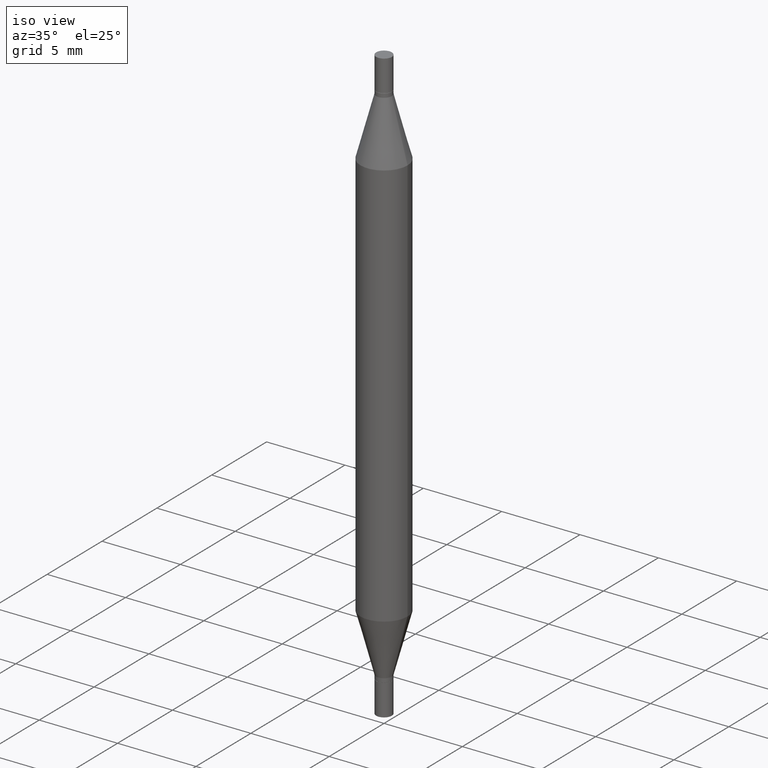
[diagram: clean part render]
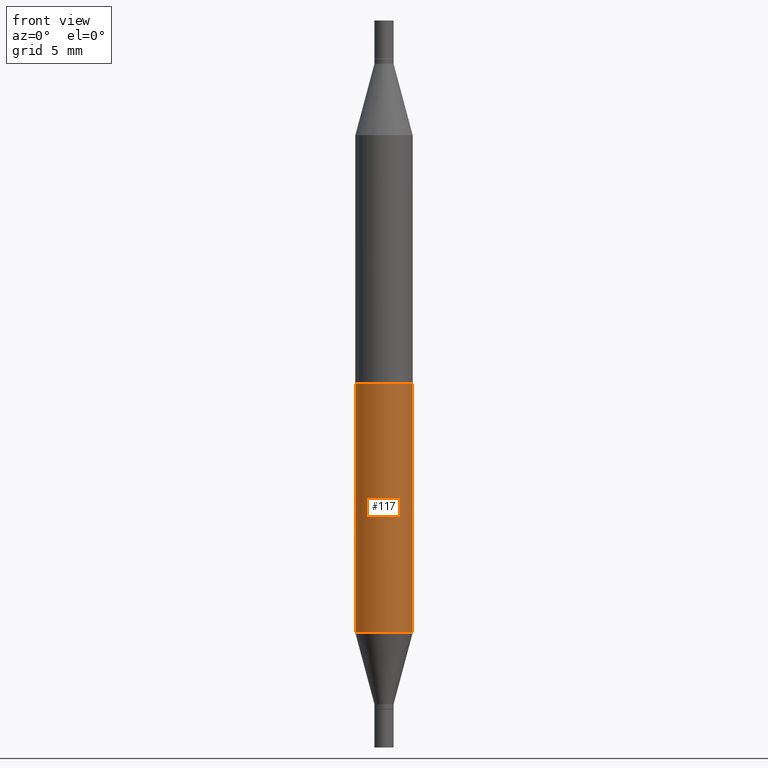
[diagram: tour spotlight — one face highlighted and labeled with its STEP entity id]
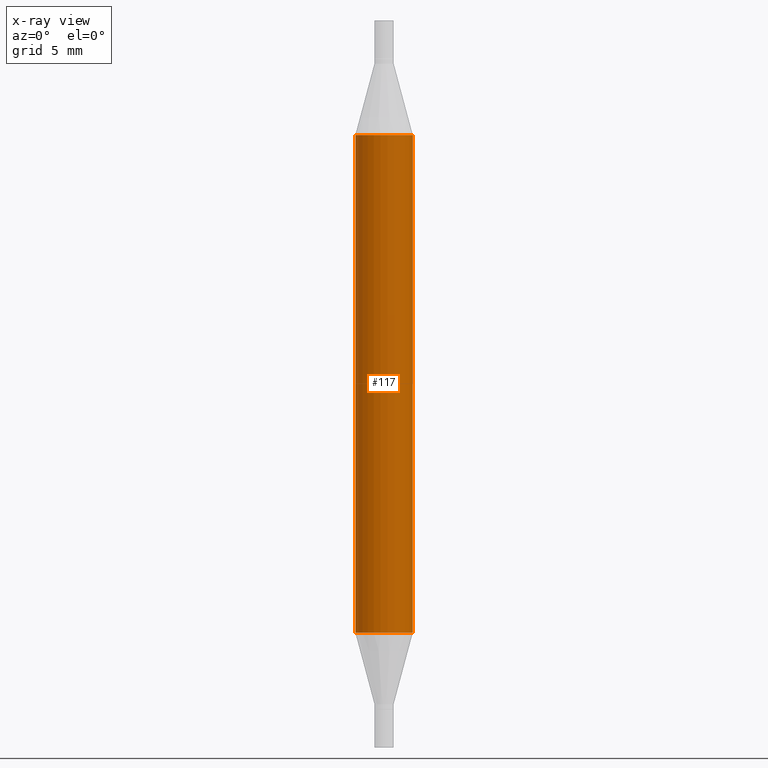
[diagram: x-ray of the same camera — body ghosted, this tour face saturated]
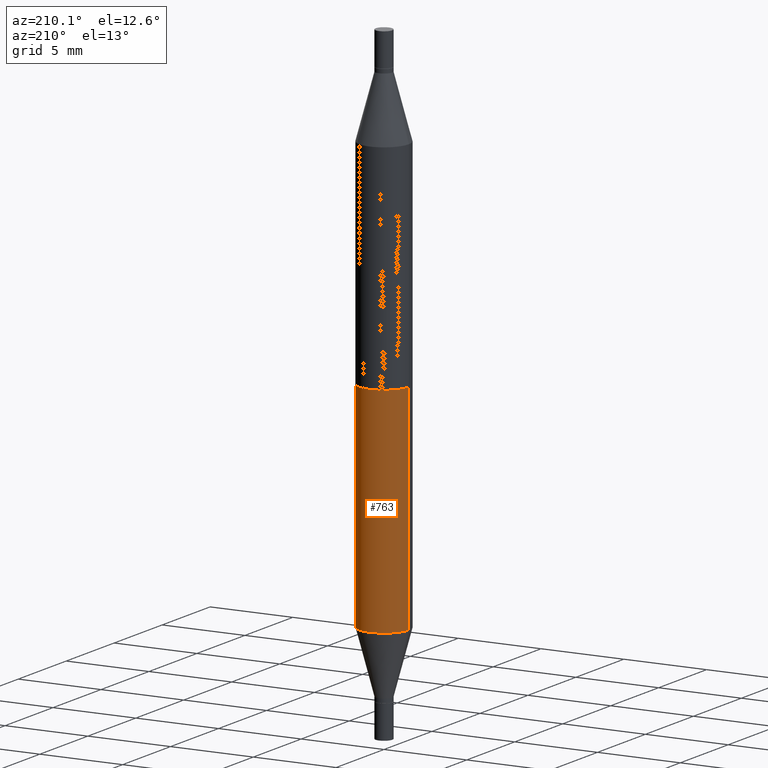
[diagram: tour spotlight — one face highlighted and labeled with its STEP entity id]
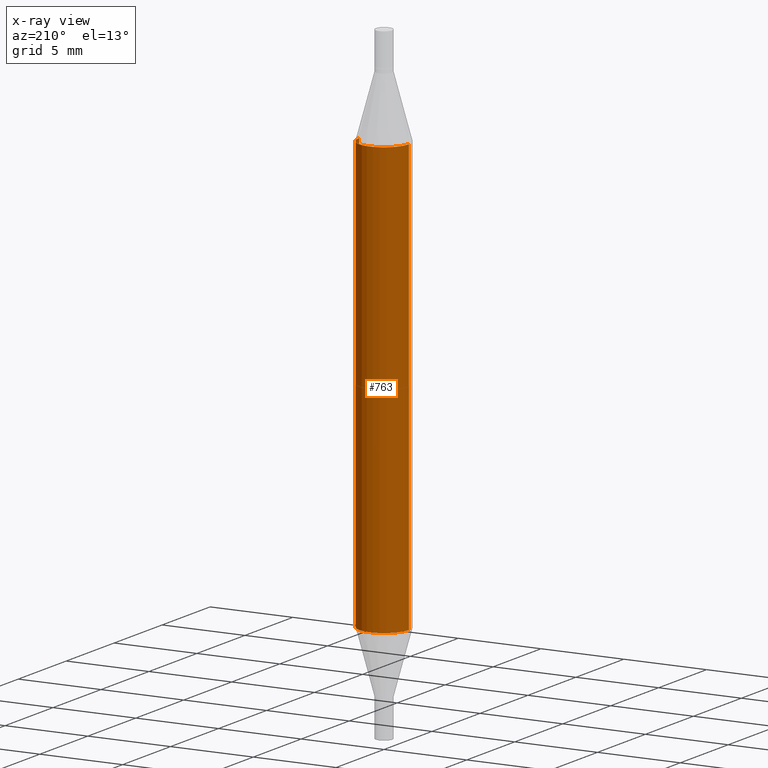
[diagram: x-ray of the same camera — body ghosted, this tour face saturated]
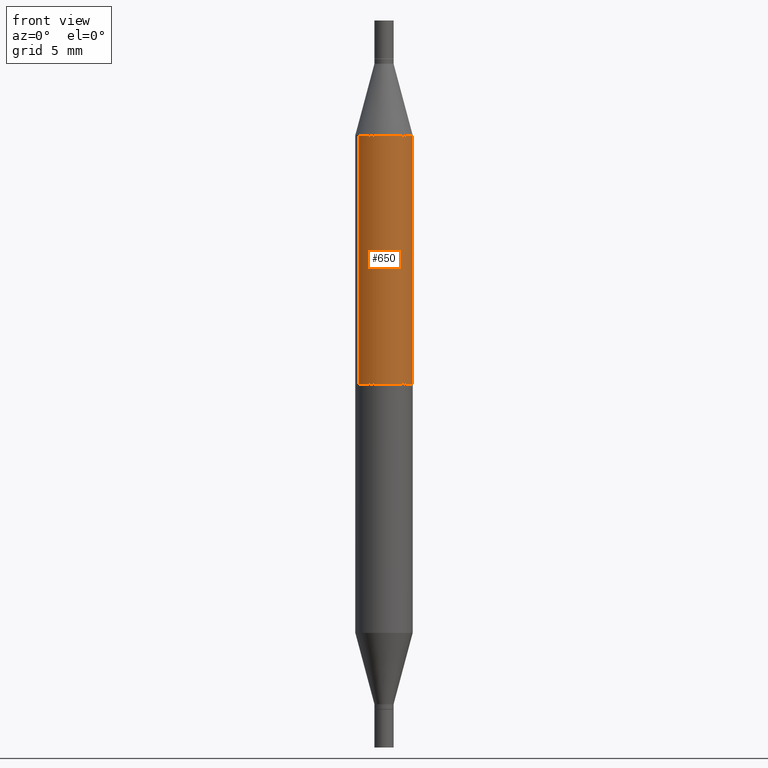
[diagram: tour spotlight — one face highlighted and labeled with its STEP entity id]
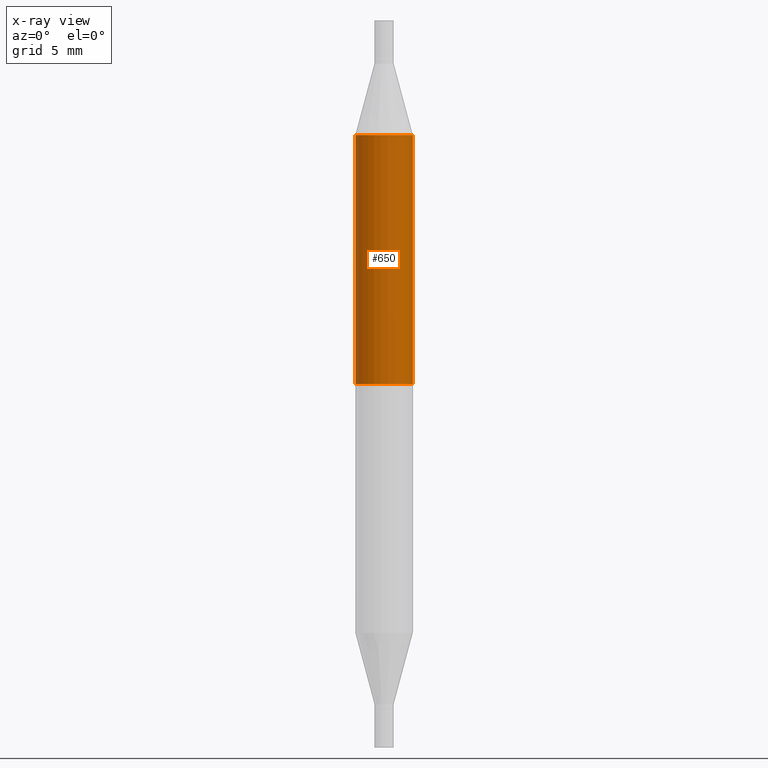
[diagram: x-ray of the same camera — body ghosted, this tour face saturated]
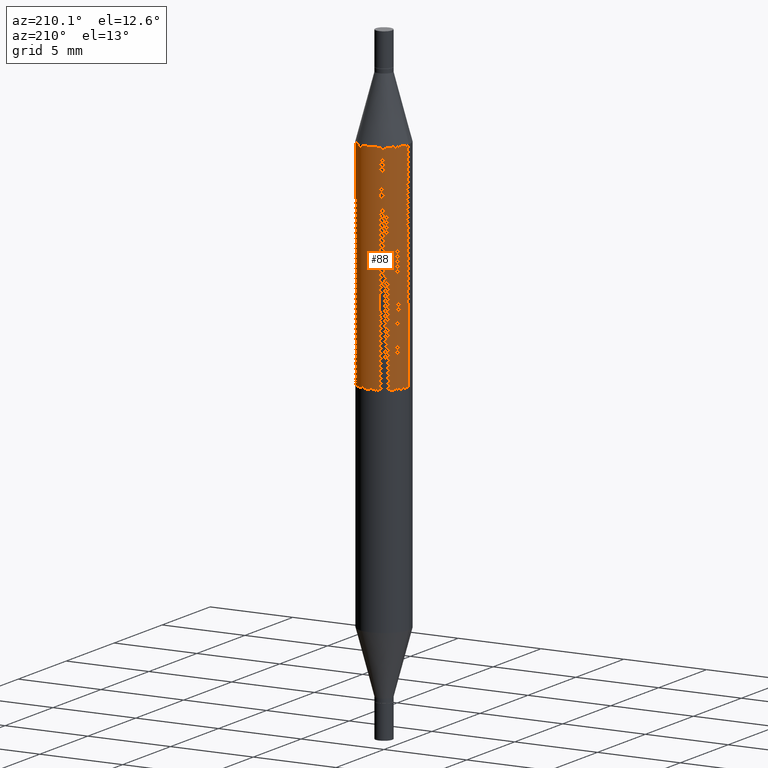
[diagram: tour spotlight — one face highlighted and labeled with its STEP entity id]
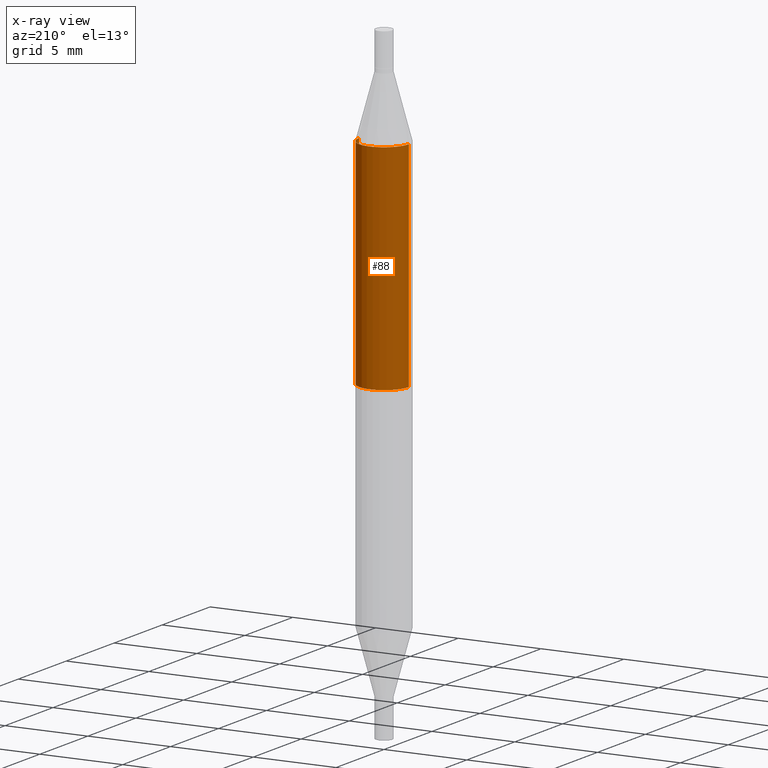
[diagram: x-ray of the same camera — body ghosted, this tour face saturated]
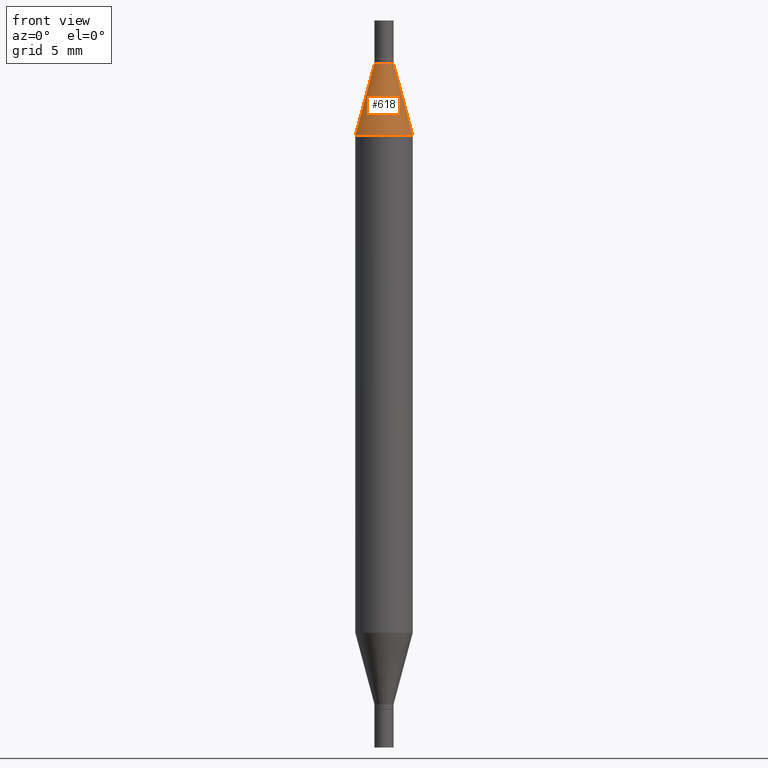
[diagram: tour spotlight — one face highlighted and labeled with its STEP entity id]
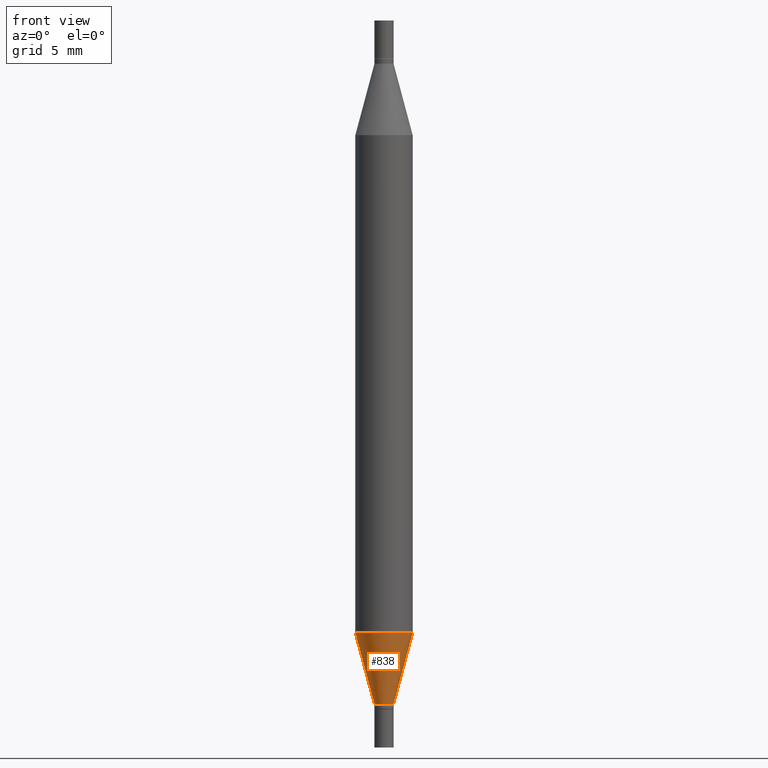
[diagram: tour spotlight — one face highlighted and labeled with its STEP entity id]
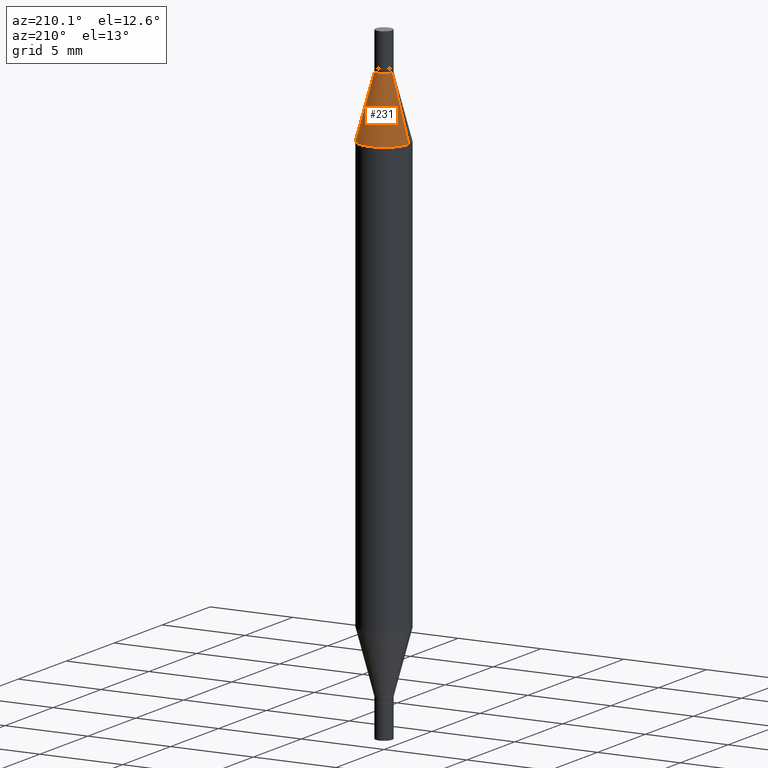
[diagram: tour spotlight — one face highlighted and labeled with its STEP entity id]
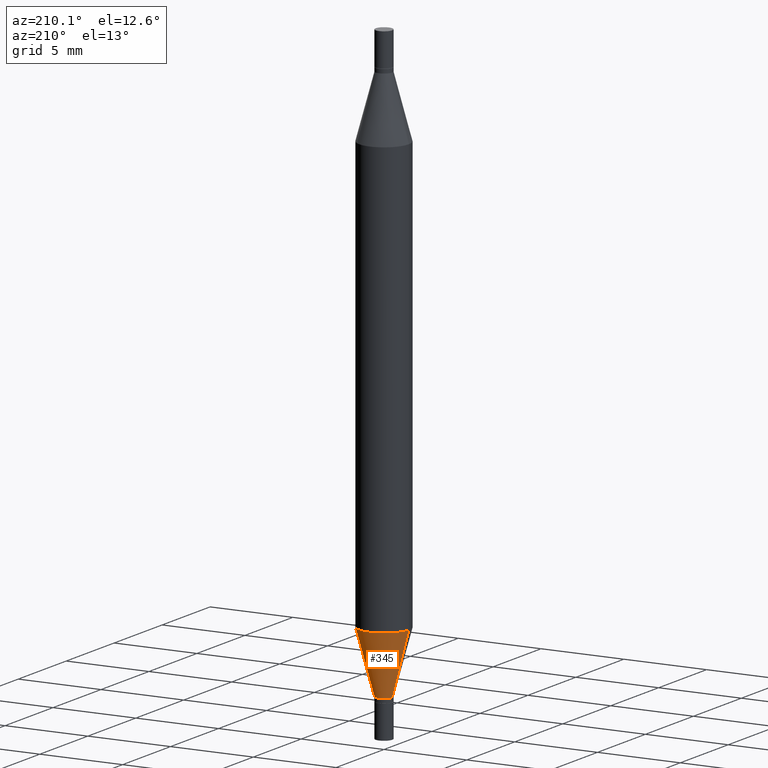
[diagram: tour spotlight — one face highlighted and labeled with its STEP entity id]
A machine part: a face-by-face anatomy tour. The part has 38 B-rep faces; the first image is the clean iso view, then the 8 largest visible faces are spotlighted one at a time (largest first), each with its STEP entity span.

Face 1 — front view, entity #117. An x-ray twin of the same camera follows (body ghosted, this face saturated) — the face is partly hidden behind the body. In plain terms, the highlighted cylindrical surface (edge-blend (fillet) strip) has radius 1.4999 mm, axis along (-0, -0, -1).
Definition (entity closure, byte-faithful):
#46 = EDGE_CURVE ( 'NONE', #279, #292, #483, .T. ) ;
#77 = CARTESIAN_POINT ( 'NONE',  ( -0.05905000000000001914, -4.818735010038875060E-15, -1.496099999999999985 ) ) ;
#95 = AXIS2_PLACEMENT_3D ( 'NONE', #146, #966, #901 ) ;
#110 = VECTOR ( 'NONE', #654, 39.37007874015748143 ) ;
#117 = ADVANCED_FACE ( 'NONE', ( #589 ), #817, .T. ) ;
#122 = CARTESIAN_POINT ( 'NONE',  ( 0.05905000000000001914, -4.812461658731569847E-15, -1.260243800722164131 ) ) ;
#136 = EDGE_CURVE ( 'NONE', #573, #175, #727, .T. ) ;
#146 = CARTESIAN_POINT ( 'NONE',  ( 0.000000000000000000, -5.223847416807283040E-15, -1.496099999999999985 ) ) ;
#159 = CIRCLE ( 'NONE', #455, 0.05905000000000001914 ) ;
#175 = VERTEX_POINT ( 'NONE', #407 ) ;
#191 = ORIENTED_EDGE ( 'NONE', *, *, #232, .F. ) ;
#232 = EDGE_CURVE ( 'NONE', #573, #279, #250, .T. ) ;
#250 = CIRCLE ( 'NONE', #861, 0.05905000000000001914 ) ;
#263 = CARTESIAN_POINT ( 'NONE',  ( 0.05905000000000001914, -1.235665638669832421E-15, -0.2358561992778358263 ) ) ;
#278 = DIRECTION ( 'NONE',  ( -2.445468806185136597E-29, 3.491481338843145583E-15, 1.000000000000000000 ) ) ;
#279 = VERTEX_POINT ( 'NONE', #263 ) ;
#292 = VERTEX_POINT ( 'NONE', #122 ) ;
#317 = EDGE_CURVE ( 'NONE', #175, #292, #159, .T. ) ;
#407 = CARTESIAN_POINT ( 'NONE',  ( -0.05905000000000001914, -2.206690208753205666E-15, -1.260243800722164131 ) ) ;
#455 = AXIS2_PLACEMENT_3D ( 'NONE', #960, #278, #563 ) ;
#475 = DIRECTION ( 'NONE',  ( -2.445468806185136877E-29, -3.491805094961123683E-15, -1.000000000000000000 ) ) ;
#477 = ORIENTED_EDGE ( 'NONE', *, *, #317, .T. ) ;
#483 = LINE ( 'NONE', #637, #745 ) ;
#492 = EDGE_LOOP ( 'NONE', ( #191, #846, #477, #496 ) ) ;
#496 = ORIENTED_EDGE ( 'NONE', *, *, #46, .F. ) ;
#563 = DIRECTION ( 'NONE',  ( 1.000000000000000000, -6.982962677686270655E-15, 0.000000000000000000 ) ) ;
#573 = VERTEX_POINT ( 'NONE', #939 ) ;
#589 = FACE_OUTER_BOUND ( 'NONE', #492, .T. ) ;
#637 = CARTESIAN_POINT ( 'NONE',  ( 0.05905000000000001914, -5.636191362924657961E-15, -1.496099999999999985 ) ) ;
#654 = DIRECTION ( 'NONE',  ( -2.445468806185136877E-29, -3.491805094961123683E-15, -1.000000000000000000 ) ) ;
#727 = LINE ( 'NONE', #77, #110 ) ;
#745 = VECTOR ( 'NONE', #475, 39.37007874015748143 ) ;
#760 = DIRECTION ( 'NONE',  ( 1.000000000000000000, -6.982962677686266711E-15, 0.000000000000000000 ) ) ;
#769 = DIRECTION ( 'NONE',  ( 2.445468806185136597E-29, 3.491805094961124077E-15, 1.000000000000000000 ) ) ;
#817 = CYLINDRICAL_SURFACE ( 'NONE', #95, 0.05905000000000001914 ) ;
#846 = ORIENTED_EDGE ( 'NONE', *, *, #136, .T. ) ;
#861 = AXIS2_PLACEMENT_3D ( 'NONE', #914, #769, #760 ) ;
#901 = DIRECTION ( 'NONE',  ( 1.000000000000000000, -6.982962677686270655E-15, 0.000000000000000000 ) ) ;
#914 = CARTESIAN_POINT ( 'NONE',  ( 3.081886902854249834E-29, -8.233216925524582901E-16, -0.2358561992778358263 ) ) ;
#939 = CARTESIAN_POINT ( 'NONE',  ( -0.05905000000000001914, -4.182092857840493725E-16, -0.2358561992778358263 ) ) ;
#960 = CARTESIAN_POINT ( 'NONE',  ( 3.081886902854249834E-29, -4.400117712614195716E-15, -1.260243800722164131 ) ) ;
#966 = DIRECTION ( 'NONE',  ( -2.445468806185136597E-29, -3.491805094961124077E-15, -1.000000000000000000 ) ) ;

Face 2 — auxiliary view, entity #763. An x-ray twin of the same camera follows (body ghosted, this face saturated) — the face is partly hidden behind the body. In plain terms, the highlighted cylindrical surface (edge-blend (fillet) strip) has radius 1.4999 mm, axis along (-0, -0, -1).
Definition (entity closure, byte-faithful):
#46 = EDGE_CURVE ( 'NONE', #279, #292, #483, .T. ) ;
#53 = AXIS2_PLACEMENT_3D ( 'NONE', #973, #719, #428 ) ;
#77 = CARTESIAN_POINT ( 'NONE',  ( -0.05905000000000001914, -4.818735010038875060E-15, -1.496099999999999985 ) ) ;
#110 = VECTOR ( 'NONE', #654, 39.37007874015748143 ) ;
#122 = CARTESIAN_POINT ( 'NONE',  ( 0.05905000000000001914, -4.812461658731569847E-15, -1.260243800722164131 ) ) ;
#132 = CIRCLE ( 'NONE', #53, 0.05905000000000001914 ) ;
#136 = EDGE_CURVE ( 'NONE', #573, #175, #727, .T. ) ;
#175 = VERTEX_POINT ( 'NONE', #407 ) ;
#194 = CYLINDRICAL_SURFACE ( 'NONE', #237, 0.05905000000000001914 ) ;
#209 = FACE_OUTER_BOUND ( 'NONE', #826, .T. ) ;
#237 = AXIS2_PLACEMENT_3D ( 'NONE', #491, #355, #566 ) ;
#263 = CARTESIAN_POINT ( 'NONE',  ( 0.05905000000000001914, -1.235665638669832421E-15, -0.2358561992778358263 ) ) ;
#279 = VERTEX_POINT ( 'NONE', #263 ) ;
#292 = VERTEX_POINT ( 'NONE', #122 ) ;
#355 = DIRECTION ( 'NONE',  ( -2.445468806185136597E-29, -3.491805094961124077E-15, -1.000000000000000000 ) ) ;
#407 = CARTESIAN_POINT ( 'NONE',  ( -0.05905000000000001914, -2.206690208753205666E-15, -1.260243800722164131 ) ) ;
#428 = DIRECTION ( 'NONE',  ( 1.000000000000000000, -6.982962677686266711E-15, 0.000000000000000000 ) ) ;
#475 = DIRECTION ( 'NONE',  ( -2.445468806185136877E-29, -3.491805094961123683E-15, -1.000000000000000000 ) ) ;
#478 = EDGE_CURVE ( 'NONE', #292, #175, #831, .T. ) ;
#483 = LINE ( 'NONE', #637, #745 ) ;
#491 = CARTESIAN_POINT ( 'NONE',  ( 0.000000000000000000, -5.223847416807283040E-15, -1.496099999999999985 ) ) ;
#520 = ORIENTED_EDGE ( 'NONE', *, *, #136, .F. ) ;
#530 = CARTESIAN_POINT ( 'NONE',  ( 3.081886902854249834E-29, -4.400117712614195716E-15, -1.260243800722164131 ) ) ;
#532 = ORIENTED_EDGE ( 'NONE', *, *, #478, .T. ) ;
#566 = DIRECTION ( 'NONE',  ( 1.000000000000000000, -6.982962677686270655E-15, 0.000000000000000000 ) ) ;
#567 = ORIENTED_EDGE ( 'NONE', *, *, #46, .T. ) ;
#573 = VERTEX_POINT ( 'NONE', #939 ) ;
#612 = DIRECTION ( 'NONE',  ( -2.445468806185136597E-29, 3.491481338843145583E-15, 1.000000000000000000 ) ) ;
#637 = CARTESIAN_POINT ( 'NONE',  ( 0.05905000000000001914, -5.636191362924657961E-15, -1.496099999999999985 ) ) ;
#654 = DIRECTION ( 'NONE',  ( -2.445468806185136877E-29, -3.491805094961123683E-15, -1.000000000000000000 ) ) ;
#655 = AXIS2_PLACEMENT_3D ( 'NONE', #530, #612, #927 ) ;
#719 = DIRECTION ( 'NONE',  ( 2.445468806185136597E-29, 3.491805094961124077E-15, 1.000000000000000000 ) ) ;
#727 = LINE ( 'NONE', #77, #110 ) ;
#745 = VECTOR ( 'NONE', #475, 39.37007874015748143 ) ;
#763 = ADVANCED_FACE ( 'NONE', ( #209 ), #194, .T. ) ;
#826 = EDGE_LOOP ( 'NONE', ( #520, #930, #567, #532 ) ) ;
#831 = CIRCLE ( 'NONE', #655, 0.05905000000000001914 ) ;
#920 = EDGE_CURVE ( 'NONE', #279, #573, #132, .T. ) ;
#927 = DIRECTION ( 'NONE',  ( 1.000000000000000000, -6.982962677686270655E-15, 0.000000000000000000 ) ) ;
#930 = ORIENTED_EDGE ( 'NONE', *, *, #920, .F. ) ;
#939 = CARTESIAN_POINT ( 'NONE',  ( -0.05905000000000001914, -4.182092857840493725E-16, -0.2358561992778358263 ) ) ;
#973 = CARTESIAN_POINT ( 'NONE',  ( 3.081886902854249834E-29, -8.233216925524582901E-16, -0.2358561992778358263 ) ) ;

Face 3 — front view, entity #650. An x-ray twin of the same camera follows (body ghosted, this face saturated) — the face is partly hidden behind the body. In plain terms, the highlighted cylindrical surface (edge-blend (fillet) strip) has radius 1.4999 mm, axis along (-0, -0, -1).
Definition (entity closure, byte-faithful):
#20 = ORIENTED_EDGE ( 'NONE', *, *, #281, .F. ) ;
#29 = EDGE_CURVE ( 'NONE', #942, #224, #388, .T. ) ;
#39 = AXIS2_PLACEMENT_3D ( 'NONE', #803, #725, #189 ) ;
#58 = VERTEX_POINT ( 'NONE', #790 ) ;
#65 = VECTOR ( 'NONE', #741, 39.37007874015748143 ) ;
#91 = DIRECTION ( 'NONE',  ( -2.445468806185136877E-29, -3.491805094961123683E-15, -1.000000000000000000 ) ) ;
#125 = EDGE_CURVE ( 'NONE', #430, #58, #667, .T. ) ;
#157 = CARTESIAN_POINT ( 'NONE',  ( -0.05905000000000001914, -1.312449747268627593E-15, -0.7480499999999999927 ) ) ;
#189 = DIRECTION ( 'NONE',  ( 1.000000000000000000, -6.982962677686270655E-15, 0.000000000000000000 ) ) ;
#193 = DIRECTION ( 'NONE',  ( -0.000000000000000000, -3.491643216902134830E-15, -1.000000000000000000 ) ) ;
#207 = ORIENTED_EDGE ( 'NONE', *, *, #692, .F. ) ;
#221 = AXIS2_PLACEMENT_3D ( 'NONE', #789, #193, #710 ) ;
#222 = AXIS2_PLACEMENT_3D ( 'NONE', #935, #645, #344 ) ;
#224 = VERTEX_POINT ( 'NONE', #157 ) ;
#281 = EDGE_CURVE ( 'NONE', #58, #224, #676, .T. ) ;
#288 = CARTESIAN_POINT ( 'NONE',  ( -0.05905000000000001914, -4.182092857840493725E-16, -0.2358561992778358263 ) ) ;
#332 = CYLINDRICAL_SURFACE ( 'NONE', #39, 0.05905000000000001914 ) ;
#344 = DIRECTION ( 'NONE',  ( 1.000000000000000000, -6.982962677686266711E-15, 0.000000000000000000 ) ) ;
#377 = CARTESIAN_POINT ( 'NONE',  ( 0.05905000000000001914, -1.235665638669832421E-15, -0.2358561992778358263 ) ) ;
#380 = ORIENTED_EDGE ( 'NONE', *, *, #125, .F. ) ;
#388 = LINE ( 'NONE', #912, #675 ) ;
#430 = VERTEX_POINT ( 'NONE', #377 ) ;
#443 = ORIENTED_EDGE ( 'NONE', *, *, #29, .T. ) ;
#645 = DIRECTION ( 'NONE',  ( 2.445468806185136597E-29, 3.491805094961124077E-15, 1.000000000000000000 ) ) ;
#650 = ADVANCED_FACE ( 'NONE', ( #777 ), #332, .T. ) ;
#667 = LINE ( 'NONE', #891, #65 ) ;
#675 = VECTOR ( 'NONE', #91, 39.37007874015748143 ) ;
#676 = CIRCLE ( 'NONE', #221, 0.05905000000000001914 ) ;
#692 = EDGE_CURVE ( 'NONE', #942, #430, #716, .T. ) ;
#710 = DIRECTION ( 'NONE',  ( 0.000000000000000000, 1.000000000000000000, -4.626330217890367758E-15 ) ) ;
#716 = CIRCLE ( 'NONE', #222, 0.05905000000000001914 ) ;
#725 = DIRECTION ( 'NONE',  ( -2.445468806185136597E-29, -3.491805094961124077E-15, -1.000000000000000000 ) ) ;
#741 = DIRECTION ( 'NONE',  ( -2.445468806185136877E-29, -3.491805094961123683E-15, -1.000000000000000000 ) ) ;
#777 = FACE_OUTER_BOUND ( 'NONE', #976, .T. ) ;
#789 = CARTESIAN_POINT ( 'NONE',  ( 1.829332940466791194E-29, -2.611802615521614830E-15, -0.7480499999999999927 ) ) ;
#790 = CARTESIAN_POINT ( 'NONE',  ( 0.05905000000000001914, -2.129906100154411086E-15, -0.7480499999999999927 ) ) ;
#803 = CARTESIAN_POINT ( 'NONE',  ( 0.000000000000000000, -5.223847416807283040E-15, -1.496099999999999985 ) ) ;
#891 = CARTESIAN_POINT ( 'NONE',  ( 0.05905000000000001914, -5.636191362924657961E-15, -1.496099999999999985 ) ) ;
#912 = CARTESIAN_POINT ( 'NONE',  ( -0.05905000000000001914, -4.818735010038875060E-15, -1.496099999999999985 ) ) ;
#935 = CARTESIAN_POINT ( 'NONE',  ( 3.081886902854249834E-29, -8.233216925524582901E-16, -0.2358561992778358263 ) ) ;
#942 = VERTEX_POINT ( 'NONE', #288 ) ;
#976 = EDGE_LOOP ( 'NONE', ( #207, #443, #20, #380 ) ) ;

Face 4 — auxiliary view, entity #88. An x-ray twin of the same camera follows (body ghosted, this face saturated) — the face is partly hidden behind the body. In plain terms, the highlighted cylindrical surface (edge-blend (fillet) strip) has radius 1.4999 mm, axis along (-0, -0, -1).
Definition (entity closure, byte-faithful):
#29 = EDGE_CURVE ( 'NONE', #942, #224, #388, .T. ) ;
#58 = VERTEX_POINT ( 'NONE', #790 ) ;
#65 = VECTOR ( 'NONE', #741, 39.37007874015748143 ) ;
#70 = EDGE_LOOP ( 'NONE', ( #877, #547, #312, #404 ) ) ;
#88 = ADVANCED_FACE ( 'NONE', ( #738 ), #311, .T. ) ;
#91 = DIRECTION ( 'NONE',  ( -2.445468806185136877E-29, -3.491805094961123683E-15, -1.000000000000000000 ) ) ;
#99 = CIRCLE ( 'NONE', #954, 0.05905000000000001914 ) ;
#125 = EDGE_CURVE ( 'NONE', #430, #58, #667, .T. ) ;
#157 = CARTESIAN_POINT ( 'NONE',  ( -0.05905000000000001914, -1.312449747268627593E-15, -0.7480499999999999927 ) ) ;
#176 = CARTESIAN_POINT ( 'NONE',  ( 1.829332940466791194E-29, -2.611802615521614830E-15, -0.7480499999999999927 ) ) ;
#224 = VERTEX_POINT ( 'NONE', #157 ) ;
#288 = CARTESIAN_POINT ( 'NONE',  ( -0.05905000000000001914, -4.182092857840493725E-16, -0.2358561992778358263 ) ) ;
#289 = AXIS2_PLACEMENT_3D ( 'NONE', #894, #512, #932 ) ;
#311 = CYLINDRICAL_SURFACE ( 'NONE', #454, 0.05905000000000001914 ) ;
#312 = ORIENTED_EDGE ( 'NONE', *, *, #125, .T. ) ;
#375 = CARTESIAN_POINT ( 'NONE',  ( 0.000000000000000000, -5.223847416807283040E-15, -1.496099999999999985 ) ) ;
#377 = CARTESIAN_POINT ( 'NONE',  ( 0.05905000000000001914, -1.235665638669832421E-15, -0.2358561992778358263 ) ) ;
#379 = DIRECTION ( 'NONE',  ( 1.000000000000000000, -6.982962677686270655E-15, 0.000000000000000000 ) ) ;
#388 = LINE ( 'NONE', #912, #675 ) ;
#403 = DIRECTION ( 'NONE',  ( -0.000000000000000000, -3.491643216902134830E-15, -1.000000000000000000 ) ) ;
#404 = ORIENTED_EDGE ( 'NONE', *, *, #578, .F. ) ;
#430 = VERTEX_POINT ( 'NONE', #377 ) ;
#450 = EDGE_CURVE ( 'NONE', #430, #942, #882, .T. ) ;
#454 = AXIS2_PLACEMENT_3D ( 'NONE', #375, #669, #379 ) ;
#512 = DIRECTION ( 'NONE',  ( 2.445468806185136597E-29, 3.491805094961124077E-15, 1.000000000000000000 ) ) ;
#547 = ORIENTED_EDGE ( 'NONE', *, *, #450, .F. ) ;
#578 = EDGE_CURVE ( 'NONE', #224, #58, #99, .T. ) ;
#667 = LINE ( 'NONE', #891, #65 ) ;
#669 = DIRECTION ( 'NONE',  ( -2.445468806185136597E-29, -3.491805094961124077E-15, -1.000000000000000000 ) ) ;
#675 = VECTOR ( 'NONE', #91, 39.37007874015748143 ) ;
#701 = DIRECTION ( 'NONE',  ( 0.000000000000000000, 1.000000000000000000, -4.626330217890367758E-15 ) ) ;
#738 = FACE_OUTER_BOUND ( 'NONE', #70, .T. ) ;
#741 = DIRECTION ( 'NONE',  ( -2.445468806185136877E-29, -3.491805094961123683E-15, -1.000000000000000000 ) ) ;
#790 = CARTESIAN_POINT ( 'NONE',  ( 0.05905000000000001914, -2.129906100154411086E-15, -0.7480499999999999927 ) ) ;
#877 = ORIENTED_EDGE ( 'NONE', *, *, #29, .F. ) ;
#882 = CIRCLE ( 'NONE', #289, 0.05905000000000001914 ) ;
#891 = CARTESIAN_POINT ( 'NONE',  ( 0.05905000000000001914, -5.636191362924657961E-15, -1.496099999999999985 ) ) ;
#894 = CARTESIAN_POINT ( 'NONE',  ( 3.081886902854249834E-29, -8.233216925524582901E-16, -0.2358561992778358263 ) ) ;
#912 = CARTESIAN_POINT ( 'NONE',  ( -0.05905000000000001914, -4.818735010038875060E-15, -1.496099999999999985 ) ) ;
#932 = DIRECTION ( 'NONE',  ( 1.000000000000000000, -6.982962677686266711E-15, 0.000000000000000000 ) ) ;
#942 = VERTEX_POINT ( 'NONE', #288 ) ;
#954 = AXIS2_PLACEMENT_3D ( 'NONE', #176, #403, #701 ) ;

Face 5 — front view, entity #618. In plain terms, the highlighted conical surface has half-angle 15 deg.
Definition (entity closure, byte-faithful):
#5 = CIRCLE ( 'NONE', #799, 0.01969999999999975937 ) ;
#8 = CONICAL_SURFACE ( 'NONE', #895, 0.01969999999999975937, 0.2617993877991502960 ) ;
#90 = DIRECTION ( 'NONE',  ( -0.2588190451025216277, -1.597197180879712157E-15, -0.9659258262890679791 ) ) ;
#118 = EDGE_CURVE ( 'NONE', #764, #584, #5, .T. ) ;
#120 = DIRECTION ( 'NONE',  ( 1.000000000000000000, -6.982962677686265922E-15, 0.000000000000000000 ) ) ;
#161 = ORIENTED_EDGE ( 'NONE', *, *, #692, .T. ) ;
#203 = EDGE_CURVE ( 'NONE', #764, #942, #900, .T. ) ;
#222 = AXIS2_PLACEMENT_3D ( 'NONE', #935, #645, #344 ) ;
#226 = CARTESIAN_POINT ( 'NONE',  ( -0.01969999999999975937, -1.753766571313877937E-16, -0.08900000000000006517 ) ) ;
#235 = CARTESIAN_POINT ( 'NONE',  ( 3.441019157183105205E-29, -3.105284676874853360E-16, -0.08900000000000006517 ) ) ;
#259 = ORIENTED_EDGE ( 'NONE', *, *, #203, .T. ) ;
#288 = CARTESIAN_POINT ( 'NONE',  ( -0.05905000000000001914, -4.182092857840493725E-16, -0.2358561992778358263 ) ) ;
#291 = DIRECTION ( 'NONE',  ( 0.2588190451025216277, -5.180148453816008779E-15, -0.9659258262890679791 ) ) ;
#295 = EDGE_CURVE ( 'NONE', #584, #430, #416, .T. ) ;
#344 = DIRECTION ( 'NONE',  ( 1.000000000000000000, -6.982962677686266711E-15, 0.000000000000000000 ) ) ;
#377 = CARTESIAN_POINT ( 'NONE',  ( 0.05905000000000001914, -1.235665638669832421E-15, -0.2358561992778358263 ) ) ;
#384 = VECTOR ( 'NONE', #291, 39.37007874015748143 ) ;
#416 = LINE ( 'NONE', #648, #384 ) ;
#430 = VERTEX_POINT ( 'NONE', #377 ) ;
#448 = DIRECTION ( 'NONE',  ( 2.445468806185136597E-29, 3.491805094961124077E-15, 1.000000000000000000 ) ) ;
#474 = CARTESIAN_POINT ( 'NONE',  ( 0.01969999999999975937, -4.480928324379030713E-16, -0.08900000000000006517 ) ) ;
#584 = VERTEX_POINT ( 'NONE', #474 ) ;
#618 = ADVANCED_FACE ( 'NONE', ( #906 ), #8, .T. ) ;
#644 = ORIENTED_EDGE ( 'NONE', *, *, #118, .F. ) ;
#645 = DIRECTION ( 'NONE',  ( 2.445468806185136597E-29, 3.491805094961124077E-15, 1.000000000000000000 ) ) ;
#648 = CARTESIAN_POINT ( 'NONE',  ( 0.01969999999999975937, -4.480928324379030713E-16, -0.08900000000000006517 ) ) ;
#653 = VECTOR ( 'NONE', #90, 39.37007874015748143 ) ;
#692 = EDGE_CURVE ( 'NONE', #942, #430, #716, .T. ) ;
#716 = CIRCLE ( 'NONE', #222, 0.05905000000000001914 ) ;
#764 = VERTEX_POINT ( 'NONE', #875 ) ;
#799 = AXIS2_PLACEMENT_3D ( 'NONE', #971, #448, #811 ) ;
#811 = DIRECTION ( 'NONE',  ( 1.000000000000000000, -6.982962677686265922E-15, 0.000000000000000000 ) ) ;
#853 = DIRECTION ( 'NONE',  ( -2.445468806185136597E-29, -3.491805094961124077E-15, -1.000000000000000000 ) ) ;
#875 = CARTESIAN_POINT ( 'NONE',  ( -0.01969999999999975937, -1.582668121660786430E-16, -0.08900000000000006517 ) ) ;
#878 = ORIENTED_EDGE ( 'NONE', *, *, #295, .F. ) ;
#895 = AXIS2_PLACEMENT_3D ( 'NONE', #235, #853, #120 ) ;
#900 = LINE ( 'NONE', #226, #653 ) ;
#906 = FACE_OUTER_BOUND ( 'NONE', #957, .T. ) ;
#935 = CARTESIAN_POINT ( 'NONE',  ( 3.081886902854249834E-29, -8.233216925524582901E-16, -0.2358561992778358263 ) ) ;
#942 = VERTEX_POINT ( 'NONE', #288 ) ;
#957 = EDGE_LOOP ( 'NONE', ( #644, #259, #161, #878 ) ) ;
#971 = CARTESIAN_POINT ( 'NONE',  ( 3.441019157183105205E-29, -3.105284676874853360E-16, -0.08900000000000006517 ) ) ;

Face 6 — front view, entity #838. In plain terms, the highlighted conical surface has half-angle 15 deg.
Definition (entity closure, byte-faithful):
#42 = CARTESIAN_POINT ( 'NONE',  ( 3.441019157183105205E-29, -4.912863391886189403E-15, -1.407099999999999795 ) ) ;
#66 = CIRCLE ( 'NONE', #495, 0.01969999999999975937 ) ;
#122 = CARTESIAN_POINT ( 'NONE',  ( 0.05905000000000001914, -4.812461658731569847E-15, -1.260243800722164131 ) ) ;
#159 = CIRCLE ( 'NONE', #455, 0.05905000000000001914 ) ;
#175 = VERTEX_POINT ( 'NONE', #407 ) ;
#184 = DIRECTION ( 'NONE',  ( -2.445468806185136597E-29, 3.491481338843145583E-15, 1.000000000000000000 ) ) ;
#192 = CARTESIAN_POINT ( 'NONE',  ( -0.01969999999999975937, -4.789994731501783196E-15, -1.407099999999999795 ) ) ;
#216 = ORIENTED_EDGE ( 'NONE', *, *, #374, .T. ) ;
#242 = EDGE_LOOP ( 'NONE', ( #359, #216, #742, #802 ) ) ;
#258 = FACE_OUTER_BOUND ( 'NONE', #242, .T. ) ;
#278 = DIRECTION ( 'NONE',  ( -2.445468806185136597E-29, 3.491481338843145583E-15, 1.000000000000000000 ) ) ;
#292 = VERTEX_POINT ( 'NONE', #122 ) ;
#317 = EDGE_CURVE ( 'NONE', #175, #292, #159, .T. ) ;
#335 = DIRECTION ( 'NONE',  ( 1.000000000000000000, -6.982962677686265922E-15, 0.000000000000000000 ) ) ;
#359 = ORIENTED_EDGE ( 'NONE', *, *, #503, .F. ) ;
#374 = EDGE_CURVE ( 'NONE', #671, #950, #66, .T. ) ;
#383 = LINE ( 'NONE', #907, #863 ) ;
#386 = VECTOR ( 'NONE', #865, 39.37007874015748143 ) ;
#387 = AXIS2_PLACEMENT_3D ( 'NONE', #42, #844, #335 ) ;
#407 = CARTESIAN_POINT ( 'NONE',  ( -0.05905000000000001914, -2.206690208753205666E-15, -1.260243800722164131 ) ) ;
#455 = AXIS2_PLACEMENT_3D ( 'NONE', #960, #278, #563 ) ;
#495 = AXIS2_PLACEMENT_3D ( 'NONE', #540, #184, #782 ) ;
#503 = EDGE_CURVE ( 'NONE', #671, #175, #383, .T. ) ;
#514 = CONICAL_SURFACE ( 'NONE', #387, 0.01969999999999975937, 0.2617993877991502960 ) ;
#540 = CARTESIAN_POINT ( 'NONE',  ( 3.441019157183105205E-29, -4.912863391886189403E-15, -1.407099999999999795 ) ) ;
#563 = DIRECTION ( 'NONE',  ( 1.000000000000000000, -6.982962677686270655E-15, 0.000000000000000000 ) ) ;
#579 = DIRECTION ( 'NONE',  ( -0.2588190451025216277, 5.211531920934551831E-15, 0.9659258262890679791 ) ) ;
#668 = EDGE_CURVE ( 'NONE', #950, #292, #776, .T. ) ;
#671 = VERTEX_POINT ( 'NONE', #192 ) ;
#742 = ORIENTED_EDGE ( 'NONE', *, *, #668, .T. ) ;
#776 = LINE ( 'NONE', #796, #386 ) ;
#782 = DIRECTION ( 'NONE',  ( 1.000000000000000000, -6.982962677686265922E-15, 0.000000000000000000 ) ) ;
#796 = CARTESIAN_POINT ( 'NONE',  ( 0.01969999999999975937, -5.050427756636607040E-15, -1.407099999999999795 ) ) ;
#802 = ORIENTED_EDGE ( 'NONE', *, *, #317, .F. ) ;
#814 = CARTESIAN_POINT ( 'NONE',  ( 0.01969999999999975937, -5.050427756636607040E-15, -1.407099999999999795 ) ) ;
#838 = ADVANCED_FACE ( 'NONE', ( #258 ), #514, .T. ) ;
#844 = DIRECTION ( 'NONE',  ( -2.445468806185136597E-29, 3.491481338843145583E-15, 1.000000000000000000 ) ) ;
#863 = VECTOR ( 'NONE', #579, 39.37007874015748143 ) ;
#865 = DIRECTION ( 'NONE',  ( 0.2588190451025216277, 1.565188264969619995E-15, 0.9659258262890679791 ) ) ;
#907 = CARTESIAN_POINT ( 'NONE',  ( -0.01969999999999975937, -4.772886472941450883E-15, -1.407099999999999795 ) ) ;
#950 = VERTEX_POINT ( 'NONE', #814 ) ;
#960 = CARTESIAN_POINT ( 'NONE',  ( 3.081886902854249834E-29, -4.400117712614195716E-15, -1.260243800722164131 ) ) ;

Face 7 — auxiliary view, entity #231. In plain terms, the highlighted conical surface has half-angle 15 deg.
Definition (entity closure, byte-faithful):
#17 = DIRECTION ( 'NONE',  ( -2.445468806185136597E-29, -3.491805094961124077E-15, -1.000000000000000000 ) ) ;
#31 = ORIENTED_EDGE ( 'NONE', *, *, #362, .F. ) ;
#45 = ORIENTED_EDGE ( 'NONE', *, *, #295, .T. ) ;
#90 = DIRECTION ( 'NONE',  ( -0.2588190451025216277, -1.597197180879712157E-15, -0.9659258262890679791 ) ) ;
#203 = EDGE_CURVE ( 'NONE', #764, #942, #900, .T. ) ;
#226 = CARTESIAN_POINT ( 'NONE',  ( -0.01969999999999975937, -1.753766571313877937E-16, -0.08900000000000006517 ) ) ;
#231 = ADVANCED_FACE ( 'NONE', ( #753 ), #800, .T. ) ;
#267 = DIRECTION ( 'NONE',  ( 2.445468806185136597E-29, 3.491805094961124077E-15, 1.000000000000000000 ) ) ;
#288 = CARTESIAN_POINT ( 'NONE',  ( -0.05905000000000001914, -4.182092857840493725E-16, -0.2358561992778358263 ) ) ;
#289 = AXIS2_PLACEMENT_3D ( 'NONE', #894, #512, #932 ) ;
#291 = DIRECTION ( 'NONE',  ( 0.2588190451025216277, -5.180148453816008779E-15, -0.9659258262890679791 ) ) ;
#295 = EDGE_CURVE ( 'NONE', #584, #430, #416, .T. ) ;
#362 = EDGE_CURVE ( 'NONE', #584, #764, #765, .T. ) ;
#377 = CARTESIAN_POINT ( 'NONE',  ( 0.05905000000000001914, -1.235665638669832421E-15, -0.2358561992778358263 ) ) ;
#384 = VECTOR ( 'NONE', #291, 39.37007874015748143 ) ;
#416 = LINE ( 'NONE', #648, #384 ) ;
#430 = VERTEX_POINT ( 'NONE', #377 ) ;
#450 = EDGE_CURVE ( 'NONE', #430, #942, #882, .T. ) ;
#474 = CARTESIAN_POINT ( 'NONE',  ( 0.01969999999999975937, -4.480928324379030713E-16, -0.08900000000000006517 ) ) ;
#511 = AXIS2_PLACEMENT_3D ( 'NONE', #681, #17, #603 ) ;
#512 = DIRECTION ( 'NONE',  ( 2.445468806185136597E-29, 3.491805094961124077E-15, 1.000000000000000000 ) ) ;
#564 = ORIENTED_EDGE ( 'NONE', *, *, #450, .T. ) ;
#584 = VERTEX_POINT ( 'NONE', #474 ) ;
#603 = DIRECTION ( 'NONE',  ( 1.000000000000000000, -6.982962677686265922E-15, 0.000000000000000000 ) ) ;
#617 = CARTESIAN_POINT ( 'NONE',  ( 3.441019157183105205E-29, -3.105284676874853360E-16, -0.08900000000000006517 ) ) ;
#638 = EDGE_LOOP ( 'NONE', ( #770, #31, #45, #564 ) ) ;
#648 = CARTESIAN_POINT ( 'NONE',  ( 0.01969999999999975937, -4.480928324379030713E-16, -0.08900000000000006517 ) ) ;
#653 = VECTOR ( 'NONE', #90, 39.37007874015748143 ) ;
#681 = CARTESIAN_POINT ( 'NONE',  ( 3.441019157183105205E-29, -3.105284676874853360E-16, -0.08900000000000006517 ) ) ;
#753 = FACE_OUTER_BOUND ( 'NONE', #638, .T. ) ;
#764 = VERTEX_POINT ( 'NONE', #875 ) ;
#765 = CIRCLE ( 'NONE', #918, 0.01969999999999975937 ) ;
#770 = ORIENTED_EDGE ( 'NONE', *, *, #203, .F. ) ;
#800 = CONICAL_SURFACE ( 'NONE', #511, 0.01969999999999975937, 0.2617993877991502960 ) ;
#875 = CARTESIAN_POINT ( 'NONE',  ( -0.01969999999999975937, -1.582668121660786430E-16, -0.08900000000000006517 ) ) ;
#882 = CIRCLE ( 'NONE', #289, 0.05905000000000001914 ) ;
#894 = CARTESIAN_POINT ( 'NONE',  ( 3.081886902854249834E-29, -8.233216925524582901E-16, -0.2358561992778358263 ) ) ;
#900 = LINE ( 'NONE', #226, #653 ) ;
#918 = AXIS2_PLACEMENT_3D ( 'NONE', #617, #267, #933 ) ;
#932 = DIRECTION ( 'NONE',  ( 1.000000000000000000, -6.982962677686266711E-15, 0.000000000000000000 ) ) ;
#933 = DIRECTION ( 'NONE',  ( 1.000000000000000000, -6.982962677686265922E-15, 0.000000000000000000 ) ) ;
#942 = VERTEX_POINT ( 'NONE', #288 ) ;

Face 8 — auxiliary view, entity #345. In plain terms, the highlighted conical surface has half-angle 15 deg.
Definition (entity closure, byte-faithful):
#69 = AXIS2_PLACEMENT_3D ( 'NONE', #797, #647, #297 ) ;
#122 = CARTESIAN_POINT ( 'NONE',  ( 0.05905000000000001914, -4.812461658731569847E-15, -1.260243800722164131 ) ) ;
#175 = VERTEX_POINT ( 'NONE', #407 ) ;
#179 = ORIENTED_EDGE ( 'NONE', *, *, #503, .T. ) ;
#192 = CARTESIAN_POINT ( 'NONE',  ( -0.01969999999999975937, -4.789994731501783196E-15, -1.407099999999999795 ) ) ;
#229 = FACE_OUTER_BOUND ( 'NONE', #775, .T. ) ;
#292 = VERTEX_POINT ( 'NONE', #122 ) ;
#297 = DIRECTION ( 'NONE',  ( 1.000000000000000000, -6.982962677686265922E-15, 0.000000000000000000 ) ) ;
#318 = ORIENTED_EDGE ( 'NONE', *, *, #940, .T. ) ;
#345 = ADVANCED_FACE ( 'NONE', ( #229 ), #936, .T. ) ;
#383 = LINE ( 'NONE', #907, #863 ) ;
#386 = VECTOR ( 'NONE', #865, 39.37007874015748143 ) ;
#407 = CARTESIAN_POINT ( 'NONE',  ( -0.05905000000000001914, -2.206690208753205666E-15, -1.260243800722164131 ) ) ;
#478 = EDGE_CURVE ( 'NONE', #292, #175, #831, .T. ) ;
#479 = DIRECTION ( 'NONE',  ( -2.445468806185136597E-29, 3.491481338843145583E-15, 1.000000000000000000 ) ) ;
#486 = CIRCLE ( 'NONE', #69, 0.01969999999999975937 ) ;
#503 = EDGE_CURVE ( 'NONE', #671, #175, #383, .T. ) ;
#530 = CARTESIAN_POINT ( 'NONE',  ( 3.081886902854249834E-29, -4.400117712614195716E-15, -1.260243800722164131 ) ) ;
#579 = DIRECTION ( 'NONE',  ( -0.2588190451025216277, 5.211531920934551831E-15, 0.9659258262890679791 ) ) ;
#612 = DIRECTION ( 'NONE',  ( -2.445468806185136597E-29, 3.491481338843145583E-15, 1.000000000000000000 ) ) ;
#628 = ORIENTED_EDGE ( 'NONE', *, *, #668, .F. ) ;
#632 = DIRECTION ( 'NONE',  ( 1.000000000000000000, -6.982962677686265922E-15, 0.000000000000000000 ) ) ;
#647 = DIRECTION ( 'NONE',  ( -2.445468806185136597E-29, 3.491481338843145583E-15, 1.000000000000000000 ) ) ;
#655 = AXIS2_PLACEMENT_3D ( 'NONE', #530, #612, #927 ) ;
#668 = EDGE_CURVE ( 'NONE', #950, #292, #776, .T. ) ;
#671 = VERTEX_POINT ( 'NONE', #192 ) ;
#702 = AXIS2_PLACEMENT_3D ( 'NONE', #706, #479, #632 ) ;
#706 = CARTESIAN_POINT ( 'NONE',  ( 3.441019157183105205E-29, -4.912863391886189403E-15, -1.407099999999999795 ) ) ;
#775 = EDGE_LOOP ( 'NONE', ( #318, #179, #958, #628 ) ) ;
#776 = LINE ( 'NONE', #796, #386 ) ;
#796 = CARTESIAN_POINT ( 'NONE',  ( 0.01969999999999975937, -5.050427756636607040E-15, -1.407099999999999795 ) ) ;
#797 = CARTESIAN_POINT ( 'NONE',  ( 3.441019157183105205E-29, -4.912863391886189403E-15, -1.407099999999999795 ) ) ;
#814 = CARTESIAN_POINT ( 'NONE',  ( 0.01969999999999975937, -5.050427756636607040E-15, -1.407099999999999795 ) ) ;
#831 = CIRCLE ( 'NONE', #655, 0.05905000000000001914 ) ;
#863 = VECTOR ( 'NONE', #579, 39.37007874015748143 ) ;
#865 = DIRECTION ( 'NONE',  ( 0.2588190451025216277, 1.565188264969619995E-15, 0.9659258262890679791 ) ) ;
#907 = CARTESIAN_POINT ( 'NONE',  ( -0.01969999999999975937, -4.772886472941450883E-15, -1.407099999999999795 ) ) ;
#927 = DIRECTION ( 'NONE',  ( 1.000000000000000000, -6.982962677686270655E-15, 0.000000000000000000 ) ) ;
#936 = CONICAL_SURFACE ( 'NONE', #702, 0.01969999999999975937, 0.2617993877991502960 ) ;
#940 = EDGE_CURVE ( 'NONE', #950, #671, #486, .T. ) ;
#950 = VERTEX_POINT ( 'NONE', #814 ) ;
#958 = ORIENTED_EDGE ( 'NONE', *, *, #478, .F. ) ;